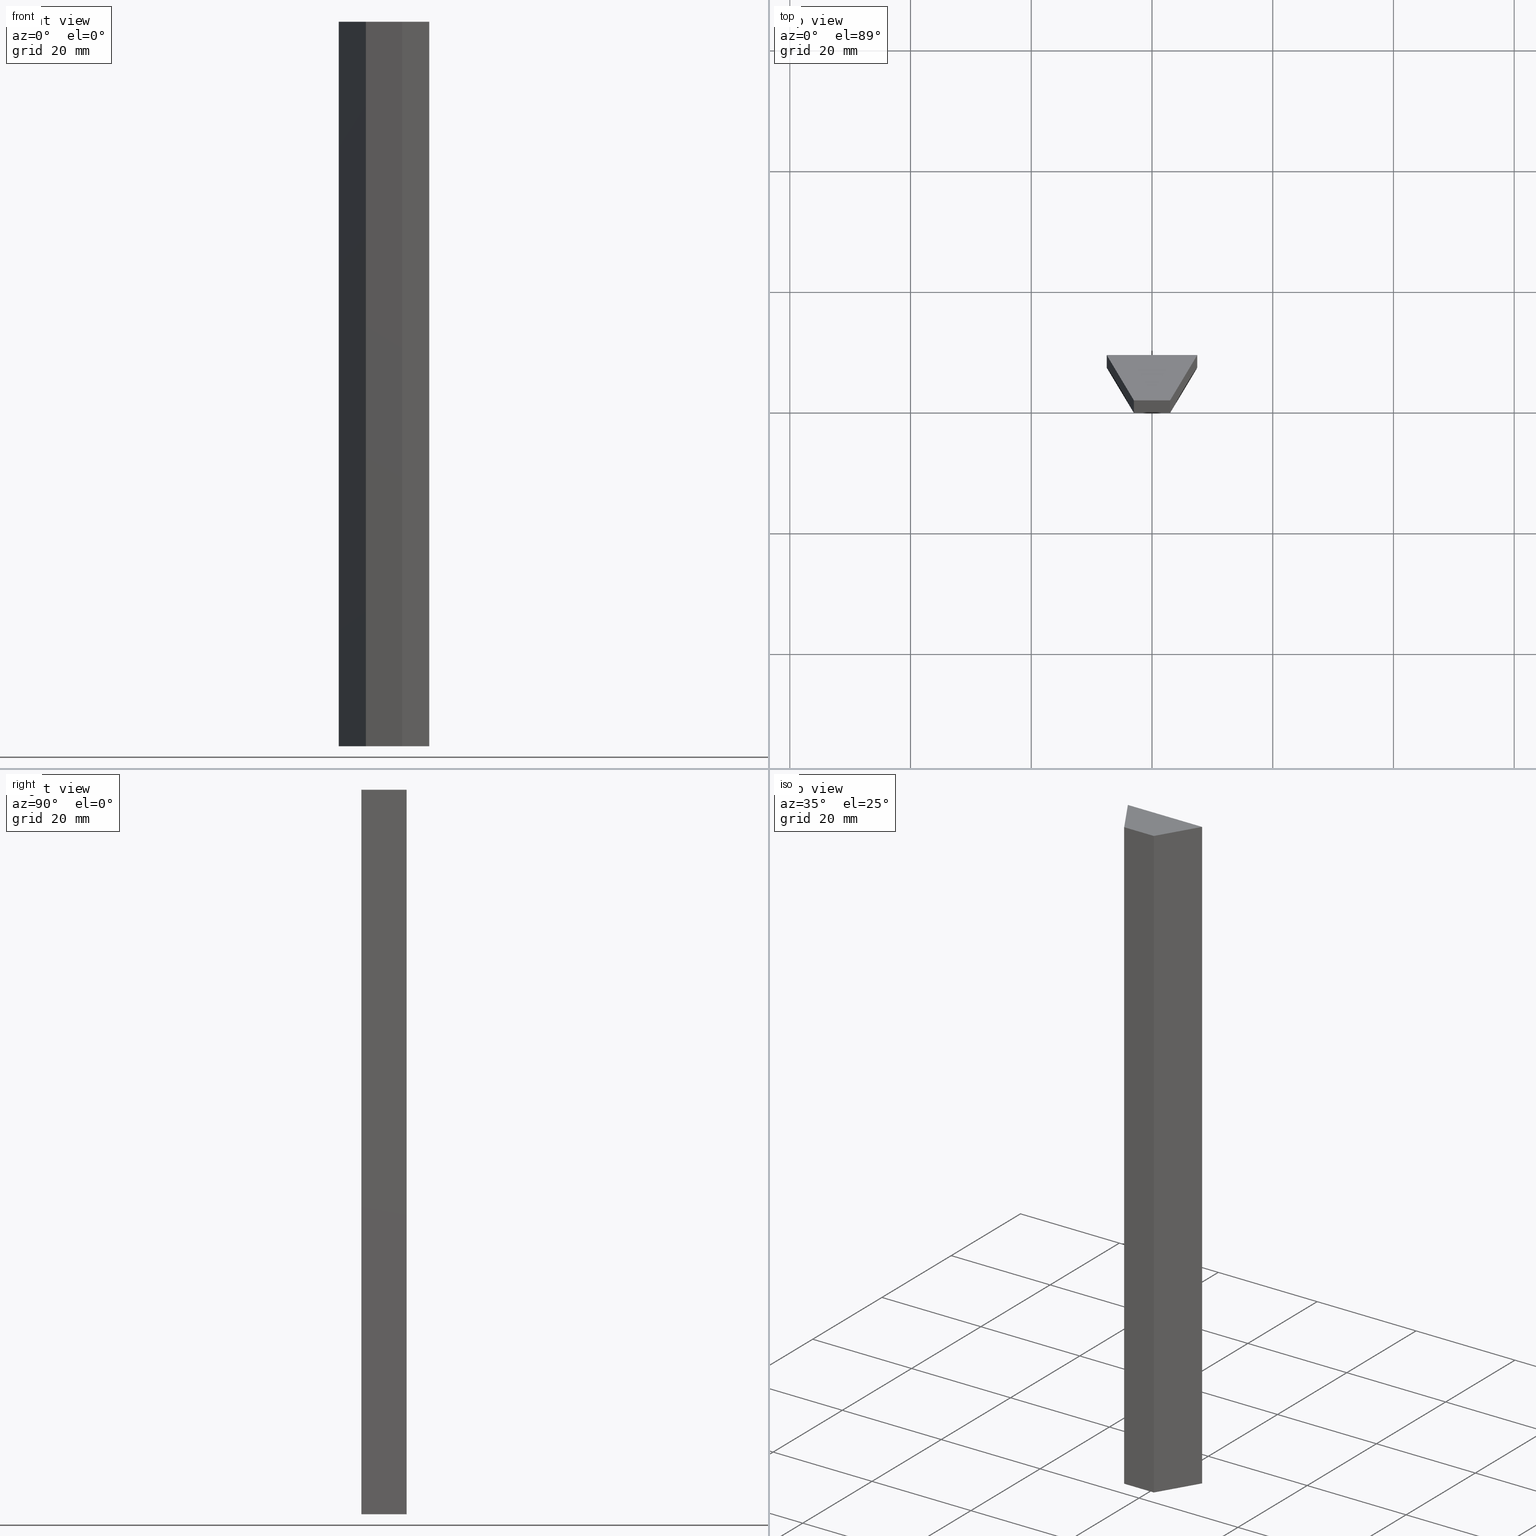
[diagram: canonical four-view strip — front | top / right | iso, engineering-drawing reading convention]
A machine part, canonical four-view strip (front | top / right | iso — engineering-drawing reading convention). The complete STEP part file that produces these views, byte-faithful:
ISO-10303-21;
HEADER;
/* Generated by software containing ST-Developer
 * from STEP Tools, Inc. (www.steptools.com) 
 */

FILE_DESCRIPTION(
/* description */ ('WKZ-0461'),
/* implementation_level */ '2;1');

FILE_NAME(
/* name */ 
'H:\\Eigene Dateien\\CAD Workspace Vault\\CAD\\E_3_Nocken\\E_3_01_Aufs
chwei\X\DFnocke\\05_V-Trapez\\E_3_01_05_07_00_WKZ-0461.stp',
/* time_stamp */ '2024-07-15T15:44:01+02:00',
/* author */ ('DFischer'),
/* organization */ (''),
/* preprocessor_version */ 'ST-DEVELOPER v18.1',
/* originating_system */ 'Autodesk Inventor 2021',
/* authorisation */ '');

FILE_SCHEMA (('AUTOMOTIVE_DESIGN { 1 0 10303 214 3 1 1 }'));
ENDSEC;

DATA;
#10=MECHANICAL_DESIGN_GEOMETRIC_PRESENTATION_REPRESENTATION('',(#13),#189);
#11=SHAPE_REPRESENTATION_RELATIONSHIP('SRR','None',#196,#12);
#12=ADVANCED_BREP_SHAPE_REPRESENTATION('',(#14),#188);
#13=STYLED_ITEM('',(#205),#14);
#14=MANIFOLD_SOLID_BREP('Volumenk\X\F6rper1',#107);
#15=FACE_OUTER_BOUND('',#21,.T.);
#16=FACE_OUTER_BOUND('',#22,.T.);
#17=FACE_OUTER_BOUND('',#23,.T.);
#18=FACE_OUTER_BOUND('',#24,.T.);
#19=FACE_OUTER_BOUND('',#25,.T.);
#20=FACE_OUTER_BOUND('',#26,.T.);
#21=EDGE_LOOP('',(#71,#72,#73,#74));
#22=EDGE_LOOP('',(#75,#76,#77,#78));
#23=EDGE_LOOP('',(#79,#80,#81,#82));
#24=EDGE_LOOP('',(#83,#84,#85,#86));
#25=EDGE_LOOP('',(#87,#88,#89,#90));
#26=EDGE_LOOP('',(#91,#92,#93,#94));
#27=LINE('',#163,#39);
#28=LINE('',#165,#40);
#29=LINE('',#167,#41);
#30=LINE('',#168,#42);
#31=LINE('',#171,#43);
#32=LINE('',#173,#44);
#33=LINE('',#174,#45);
#34=LINE('',#177,#46);
#35=LINE('',#179,#47);
#36=LINE('',#180,#48);
#37=LINE('',#182,#49);
#38=LINE('',#183,#50);
#39=VECTOR('',#137,10.);
#40=VECTOR('',#138,10.);
#41=VECTOR('',#139,10.);
#42=VECTOR('',#140,10.);
#43=VECTOR('',#143,10.);
#44=VECTOR('',#144,10.);
#45=VECTOR('',#145,10.);
#46=VECTOR('',#148,10.);
#47=VECTOR('',#149,10.);
#48=VECTOR('',#150,10.);
#49=VECTOR('',#153,10.);
#50=VECTOR('',#154,10.);
#51=VERTEX_POINT('',#161);
#52=VERTEX_POINT('',#162);
#53=VERTEX_POINT('',#164);
#54=VERTEX_POINT('',#166);
#55=VERTEX_POINT('',#170);
#56=VERTEX_POINT('',#172);
#57=VERTEX_POINT('',#176);
#58=VERTEX_POINT('',#178);
#59=EDGE_CURVE('',#51,#52,#27,.T.);
#60=EDGE_CURVE('',#51,#53,#28,.T.);
#61=EDGE_CURVE('',#54,#53,#29,.T.);
#62=EDGE_CURVE('',#52,#54,#30,.T.);
#63=EDGE_CURVE('',#52,#55,#31,.T.);
#64=EDGE_CURVE('',#56,#54,#32,.T.);
#65=EDGE_CURVE('',#55,#56,#33,.T.);
#66=EDGE_CURVE('',#55,#57,#34,.T.);
#67=EDGE_CURVE('',#58,#56,#35,.T.);
#68=EDGE_CURVE('',#57,#58,#36,.T.);
#69=EDGE_CURVE('',#57,#51,#37,.T.);
#70=EDGE_CURVE('',#53,#58,#38,.T.);
#71=ORIENTED_EDGE('',*,*,#59,.F.);
#72=ORIENTED_EDGE('',*,*,#60,.T.);
#73=ORIENTED_EDGE('',*,*,#61,.F.);
#74=ORIENTED_EDGE('',*,*,#62,.F.);
#75=ORIENTED_EDGE('',*,*,#63,.F.);
#76=ORIENTED_EDGE('',*,*,#62,.T.);
#77=ORIENTED_EDGE('',*,*,#64,.F.);
#78=ORIENTED_EDGE('',*,*,#65,.F.);
#79=ORIENTED_EDGE('',*,*,#66,.F.);
#80=ORIENTED_EDGE('',*,*,#65,.T.);
#81=ORIENTED_EDGE('',*,*,#67,.F.);
#82=ORIENTED_EDGE('',*,*,#68,.F.);
#83=ORIENTED_EDGE('',*,*,#69,.F.);
#84=ORIENTED_EDGE('',*,*,#68,.T.);
#85=ORIENTED_EDGE('',*,*,#70,.F.);
#86=ORIENTED_EDGE('',*,*,#60,.F.);
#87=ORIENTED_EDGE('',*,*,#69,.T.);
#88=ORIENTED_EDGE('',*,*,#59,.T.);
#89=ORIENTED_EDGE('',*,*,#63,.T.);
#90=ORIENTED_EDGE('',*,*,#66,.T.);
#91=ORIENTED_EDGE('',*,*,#70,.T.);
#92=ORIENTED_EDGE('',*,*,#67,.T.);
#93=ORIENTED_EDGE('',*,*,#64,.T.);
#94=ORIENTED_EDGE('',*,*,#61,.T.);
#95=PLANE('',#127);
#96=PLANE('',#128);
#97=PLANE('',#129);
#98=PLANE('',#130);
#99=PLANE('',#131);
#100=PLANE('',#132);
#101=ADVANCED_FACE('',(#15),#95,.T.);
#102=ADVANCED_FACE('',(#16),#96,.T.);
#103=ADVANCED_FACE('',(#17),#97,.T.);
#104=ADVANCED_FACE('',(#18),#98,.T.);
#105=ADVANCED_FACE('',(#19),#99,.T.);
#106=ADVANCED_FACE('',(#20),#100,.T.);
#107=CLOSED_SHELL('',(#101,#102,#103,#104,#105,#106));
#108=DERIVED_UNIT_ELEMENT(#110,1.);
#109=DERIVED_UNIT_ELEMENT(#191,3.);
#110=(
MASS_UNIT()
NAMED_UNIT(*)
SI_UNIT($,.GRAM.)
);
#111=DERIVED_UNIT((#108,#109));
#112=MEASURE_REPRESENTATION_ITEM('density measure',
POSITIVE_RATIO_MEASURE(1.),#111);
#113=PROPERTY_DEFINITION_REPRESENTATION(#118,#115);
#114=PROPERTY_DEFINITION_REPRESENTATION(#119,#116);
#115=REPRESENTATION('material name',(#117),#188);
#116=REPRESENTATION('density',(#112),#188);
#117=DESCRIPTIVE_REPRESENTATION_ITEM('Generisch','Generisch');
#118=PROPERTY_DEFINITION('material property','material name',#198);
#119=PROPERTY_DEFINITION('material property','density of part',#198);
#120=DATE_TIME_ROLE('creation_date');
#121=APPLIED_DATE_AND_TIME_ASSIGNMENT(#122,#120,(#198));
#122=DATE_AND_TIME(#123,#124);
#123=CALENDAR_DATE(2024,14,5);
#124=LOCAL_TIME(0,0,0.,#125);
#125=COORDINATED_UNIVERSAL_TIME_OFFSET(0,0,.BEHIND.);
#126=AXIS2_PLACEMENT_3D('placement',#159,#133,#134);
#127=AXIS2_PLACEMENT_3D('',#160,#135,#136);
#128=AXIS2_PLACEMENT_3D('',#169,#141,#142);
#129=AXIS2_PLACEMENT_3D('',#175,#146,#147);
#130=AXIS2_PLACEMENT_3D('',#181,#151,#152);
#131=AXIS2_PLACEMENT_3D('',#184,#155,#156);
#132=AXIS2_PLACEMENT_3D('',#185,#157,#158);
#133=DIRECTION('axis',(0.,0.,1.));
#134=DIRECTION('refdir',(1.,0.,0.));
#135=DIRECTION('center_axis',(0.,1.,0.));
#136=DIRECTION('ref_axis',(1.,0.,0.));
#137=DIRECTION('',(-1.,0.,0.));
#138=DIRECTION('',(0.,0.,-1.));
#139=DIRECTION('',(1.,0.,0.));
#140=DIRECTION('',(0.,0.,-1.));
#141=DIRECTION('center_axis',(-0.857492925712544,-0.514495755427527,0.));
#142=DIRECTION('ref_axis',(-0.514495755427527,0.857492925712544,0.));
#143=DIRECTION('',(0.514495755427527,-0.857492925712544,0.));
#144=DIRECTION('',(-0.514495755427527,0.857492925712544,0.));
#145=DIRECTION('',(0.,0.,-1.));
#146=DIRECTION('center_axis',(0.,-1.,0.));
#147=DIRECTION('ref_axis',(-1.,0.,0.));
#148=DIRECTION('',(1.,0.,0.));
#149=DIRECTION('',(-1.,0.,0.));
#150=DIRECTION('',(0.,0.,-1.));
#151=DIRECTION('center_axis',(0.857492925712544,-0.514495755427527,0.));
#152=DIRECTION('ref_axis',(-0.514495755427527,-0.857492925712544,0.));
#153=DIRECTION('',(0.514495755427527,0.857492925712544,0.));
#154=DIRECTION('',(-0.514495755427527,-0.857492925712544,0.));
#155=DIRECTION('center_axis',(0.,0.,1.));
#156=DIRECTION('ref_axis',(1.,0.,0.));
#157=DIRECTION('center_axis',(0.,0.,-1.));
#158=DIRECTION('ref_axis',(-1.,0.,0.));
#159=CARTESIAN_POINT('',(0.,0.,0.));
#160=CARTESIAN_POINT('Origin',(-7.5,7.5,0.));
#161=CARTESIAN_POINT('',(7.5,7.5,0.));
#162=CARTESIAN_POINT('',(-7.5,7.5,0.));
#163=CARTESIAN_POINT('',(7.5,7.5,0.));
#164=CARTESIAN_POINT('',(7.5,7.5,-120.));
#165=CARTESIAN_POINT('',(7.5,7.5,0.));
#166=CARTESIAN_POINT('',(-7.5,7.5,-120.));
#167=CARTESIAN_POINT('',(7.5,7.5,-120.));
#168=CARTESIAN_POINT('',(-7.5,7.5,0.));
#169=CARTESIAN_POINT('Origin',(-3.,-1.11022302462516E-15,0.));
#170=CARTESIAN_POINT('',(-3.,0.,0.));
#171=CARTESIAN_POINT('',(-7.5,7.5,0.));
#172=CARTESIAN_POINT('',(-3.,0.,-120.));
#173=CARTESIAN_POINT('',(-7.5,7.5,-120.));
#174=CARTESIAN_POINT('',(-3.,0.,0.));
#175=CARTESIAN_POINT('Origin',(3.,0.,0.));
#176=CARTESIAN_POINT('',(3.,0.,0.));
#177=CARTESIAN_POINT('',(-3.,0.,0.));
#178=CARTESIAN_POINT('',(3.,0.,-120.));
#179=CARTESIAN_POINT('',(-3.,0.,-120.));
#180=CARTESIAN_POINT('',(3.,0.,0.));
#181=CARTESIAN_POINT('Origin',(7.5,7.5,0.));
#182=CARTESIAN_POINT('',(3.,0.,0.));
#183=CARTESIAN_POINT('',(3.,0.,-120.));
#184=CARTESIAN_POINT('Origin',(-1.11022302462516E-15,3.75,0.));
#185=CARTESIAN_POINT('Origin',(-1.11022302462516E-15,3.75,-120.));
#186=UNCERTAINTY_MEASURE_WITH_UNIT(LENGTH_MEASURE(0.01),#190,
'DISTANCE_ACCURACY_VALUE',
'Maximum model space distance between geometric entities at asserted c
onnectivities');
#187=UNCERTAINTY_MEASURE_WITH_UNIT(LENGTH_MEASURE(0.01),#190,
'DISTANCE_ACCURACY_VALUE',
'Maximum model space distance between geometric entities at asserted c
onnectivities');
#188=(
GEOMETRIC_REPRESENTATION_CONTEXT(3)
GLOBAL_UNCERTAINTY_ASSIGNED_CONTEXT((#186))
GLOBAL_UNIT_ASSIGNED_CONTEXT((#190,#192,#193))
REPRESENTATION_CONTEXT('','3D')
);
#189=(
GEOMETRIC_REPRESENTATION_CONTEXT(3)
GLOBAL_UNCERTAINTY_ASSIGNED_CONTEXT((#187))
GLOBAL_UNIT_ASSIGNED_CONTEXT((#190,#192,#193))
REPRESENTATION_CONTEXT('','3D')
);
#190=(
LENGTH_UNIT()
NAMED_UNIT(*)
SI_UNIT(.MILLI.,.METRE.)
);
#191=(
LENGTH_UNIT()
NAMED_UNIT(*)
SI_UNIT(.CENTI.,.METRE.)
);
#192=(
NAMED_UNIT(*)
PLANE_ANGLE_UNIT()
SI_UNIT($,.RADIAN.)
);
#193=(
NAMED_UNIT(*)
SI_UNIT($,.STERADIAN.)
SOLID_ANGLE_UNIT()
);
#194=SHAPE_DEFINITION_REPRESENTATION(#195,#196);
#195=PRODUCT_DEFINITION_SHAPE('',$,#198);
#196=SHAPE_REPRESENTATION('',(#126),#188);
#197=PRODUCT_DEFINITION_CONTEXT('part definition',#202,'design');
#198=PRODUCT_DEFINITION('E_3_01_05_07_00_WKZ-0461',
'E_3_01_05_07_00_WKZ-0461',#199,#197);
#199=PRODUCT_DEFINITION_FORMATION('',$,#204);
#200=PRODUCT_RELATED_PRODUCT_CATEGORY('E_3_01_05_07_00_WKZ-0461',
'E_3_01_05_07_00_WKZ-0461',(#204));
#201=APPLICATION_PROTOCOL_DEFINITION('international standard',
'automotive_design',2009,#202);
#202=APPLICATION_CONTEXT(
'Core Data for Automotive Mechanical Design Process');
#203=PRODUCT_CONTEXT('part definition',#202,'mechanical');
#204=PRODUCT('E_3_01_05_07_00_WKZ-0461','E_3_01_05_07_00_WKZ-0461',
'WKZ-0461',(#203));
#205=PRESENTATION_STYLE_ASSIGNMENT((#206));
#206=SURFACE_STYLE_USAGE(.BOTH.,#209);
#207=SURFACE_STYLE_RENDERING_WITH_PROPERTIES($,#213,(#208));
#208=SURFACE_STYLE_TRANSPARENT(0.);
#209=SURFACE_SIDE_STYLE('',(#210,#207));
#210=SURFACE_STYLE_FILL_AREA(#211);
#211=FILL_AREA_STYLE('',(#212));
#212=FILL_AREA_STYLE_COLOUR('',#213);
#213=COLOUR_RGB('',0.749019607843137,0.749019607843137,0.749019607843137);
ENDSEC;
END-ISO-10303-21;
